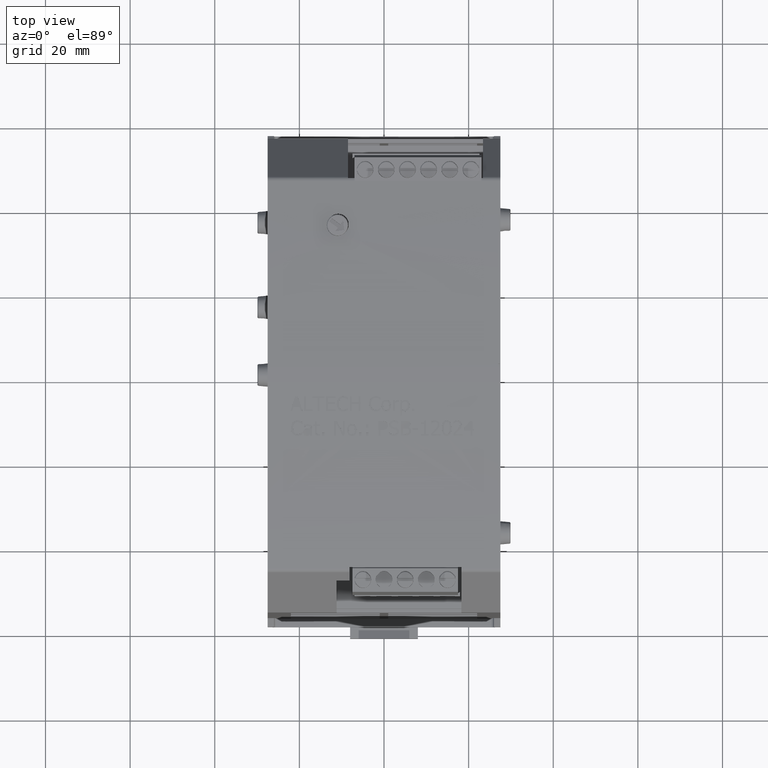
[diagram: clean part render]
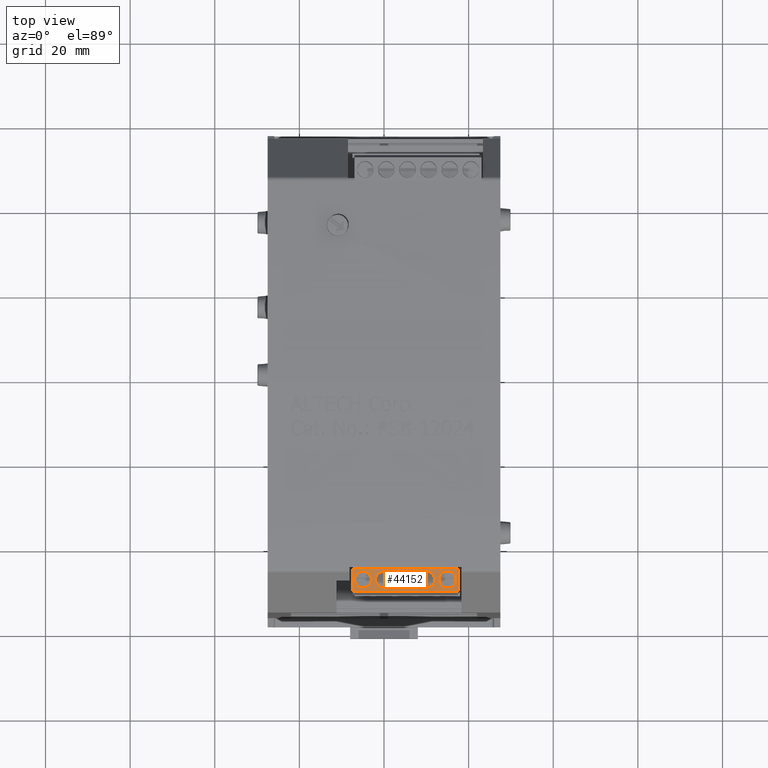
[diagram: same view with one face highlighted and labeled with its STEP entity id]
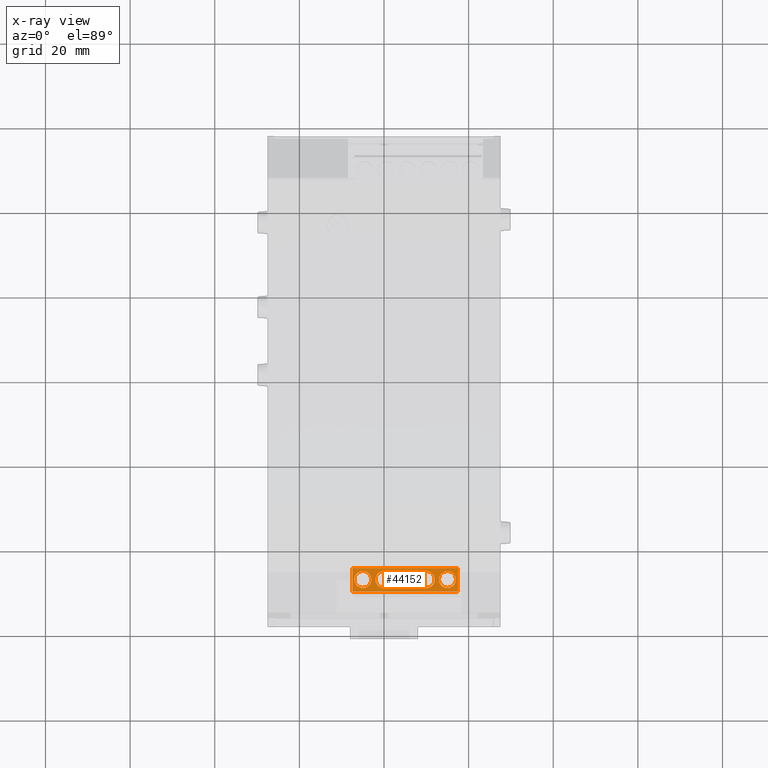
[diagram: x-ray of the same camera — body ghosted, the highlighted face saturated]
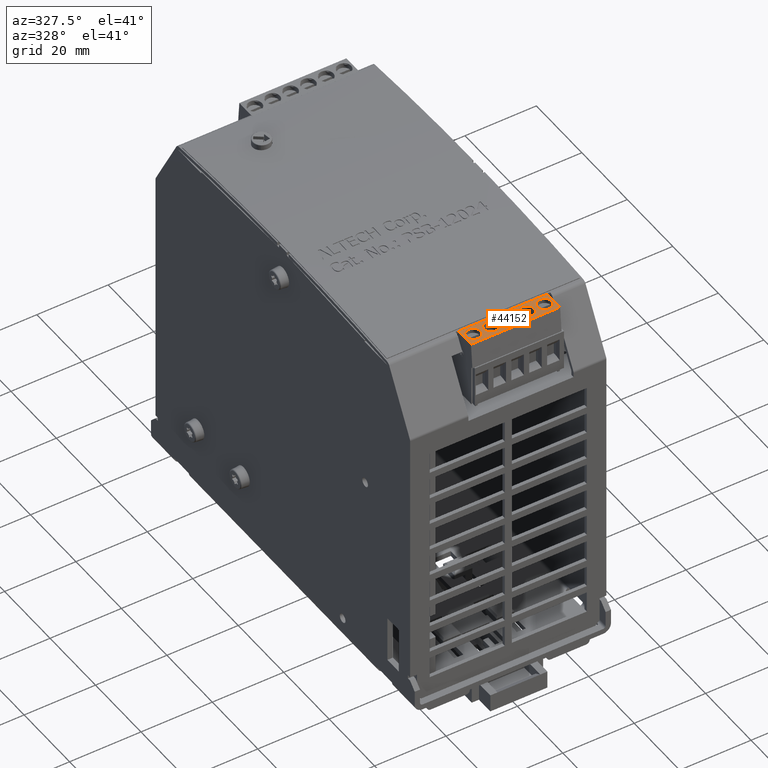
[diagram: same view with one face highlighted and labeled with its STEP entity id]
A machine part, top view. The second image highlights one B-rep face of the part: STEP entity #44152.
The next image is the same camera in x-ray: the body ghosted, the highlighted face saturated — about 0% of this face is hidden behind the body in this view.
A second angle (auxiliary view) of the same face is appended — the face is thin or edge-on in the first view.
In plain terms, the highlighted planar face has unit normal (0, 0, 1).
Its self-contained STEP definition (entity closure, byte-faithful):
#43846=CARTESIAN_POINT('',(-0.295586614173163,-2.022615373581339,3.980732283464569));
#43847=VERTEX_POINT('',#43846);
#43854=CARTESIAN_POINT('',(-0.295586614173163,-1.802142932636457,3.980732283464569));
#43855=VERTEX_POINT('',#43854);
#43856=CARTESIAN_POINT('',(-0.295586614173163,-1.802142932636457,3.980732283464569));
#43857=DIRECTION('',(0.0,-1.0,0.0));
#43858=VECTOR('',#43857,0.220472440944882);
#43859=LINE('',#43856,#43858);
#43860=EDGE_CURVE('',#43855,#43847,#43859,.T.);
#44056=CARTESIAN_POINT('',(0.688665354330774,-2.022615373581339,3.980732283464569));
#44057=VERTEX_POINT('',#44056);
#44064=CARTESIAN_POINT('',(0.688665354330774,-2.022615373581339,3.980732283464569));
#44065=DIRECTION('',(-1.0,0.0,0.0));
#44066=VECTOR('',#44065,0.984251968503937);
#44067=LINE('',#44064,#44066);
#44068=EDGE_CURVE('',#44057,#43847,#44067,.T.);
#44074=CARTESIAN_POINT('',(-0.295586614173163,-2.022615373581339,3.980732283464569));
#44075=DIRECTION('',(0.0,0.0,1.0));
#44076=DIRECTION('',(0.0,-1.0,0.0));
#44077=AXIS2_PLACEMENT_3D('',#44074,#44075,#44076);
#44078=PLANE('',#44077);
#44079=ORIENTED_EDGE('',*,*,#43860,.T.);
#44080=ORIENTED_EDGE('',*,*,#44068,.F.);
#44081=CARTESIAN_POINT('',(0.688665354330774,-1.802142932636457,3.980732283464569));
#44082=VERTEX_POINT('',#44081);
#44083=CARTESIAN_POINT('',(0.688665354330774,-1.802142932636457,3.980732283464569));
#44084=DIRECTION('',(0.0,-1.0,0.0));
#44085=VECTOR('',#44084,0.220472440944882);
#44086=LINE('',#44083,#44085);
#44087=EDGE_CURVE('',#44082,#44057,#44086,.T.);
#44088=ORIENTED_EDGE('',*,*,#44087,.F.);
#44089=CARTESIAN_POINT('',(0.688665354330774,-1.802142932636457,3.980732283464569));
#44090=DIRECTION('',(-1.0,0.0,0.0));
#44091=VECTOR('',#44090,0.984251968503937);
#44092=LINE('',#44089,#44091);
#44093=EDGE_CURVE('',#44082,#43855,#44092,.T.);
#44094=ORIENTED_EDGE('',*,*,#44093,.T.);
#44095=EDGE_LOOP('',(#44079,#44080,#44088,#44094));
#44096=FACE_OUTER_BOUND('',#44095,.T.);
#44097=CARTESIAN_POINT('',(-0.19716141732277,-1.829748031496064,3.980732283464569));
#44098=VERTEX_POINT('',#44097);
#44099=CARTESIAN_POINT('',(-0.19716141732277,-1.908488188976379,3.980732283464569));
#44100=DIRECTION('',(0.0,0.0,1.0));
#44101=DIRECTION('',(0.0,1.0,0.0));
#44102=AXIS2_PLACEMENT_3D('',#44099,#44100,#44101);
#44103=CIRCLE('',#44102,0.078740157480315);
#44104=EDGE_CURVE('',#44098,#44098,#44103,.T.);
#44105=ORIENTED_EDGE('',*,*,#44104,.F.);
#44106=EDGE_LOOP('',(#44105));
#44107=FACE_BOUND('',#44106,.T.);
#44108=CARTESIAN_POINT('',(-0.000311023621982,-1.829748031496064,3.980732283464569));
#44109=VERTEX_POINT('',#44108);
#44110=CARTESIAN_POINT('',(-0.000311023621982,-1.908488188976379,3.980732283464569));
#44111=DIRECTION('',(0.0,0.0,1.0));
#44112=DIRECTION('',(0.0,1.0,0.0));
#44113=AXIS2_PLACEMENT_3D('',#44110,#44111,#44112);
#44114=CIRCLE('',#44113,0.078740157480315);
#44115=EDGE_CURVE('',#44109,#44109,#44114,.T.);
#44116=ORIENTED_EDGE('',*,*,#44115,.F.);
#44117=EDGE_LOOP('',(#44116));
#44118=FACE_BOUND('',#44117,.T.);
#44119=CARTESIAN_POINT('',(0.196539370078805,-1.829748031496064,3.980732283464569));
#44120=VERTEX_POINT('',#44119);
#44121=CARTESIAN_POINT('',(0.196539370078805,-1.908488188976379,3.980732283464569));
#44122=DIRECTION('',(0.0,0.0,1.0));
#44123=DIRECTION('',(0.0,1.0,0.0));
#44124=AXIS2_PLACEMENT_3D('',#44121,#44122,#44123);
#44125=CIRCLE('',#44124,0.078740157480315);
#44126=EDGE_CURVE('',#44120,#44120,#44125,.T.);
#44127=ORIENTED_EDGE('',*,*,#44126,.F.);
#44128=EDGE_LOOP('',(#44127));
#44129=FACE_BOUND('',#44128,.T.);
#44130=CARTESIAN_POINT('',(0.393389763779593,-1.829748031496064,3.980732283464569));
#44131=VERTEX_POINT('',#44130);
#44132=CARTESIAN_POINT('',(0.393389763779593,-1.908488188976379,3.980732283464569));
#44133=DIRECTION('',(0.0,0.0,1.0));
#44134=DIRECTION('',(0.0,1.0,0.0));
#44135=AXIS2_PLACEMENT_3D('',#44132,#44133,#44134);
#44136=CIRCLE('',#44135,0.078740157480315);
#44137=EDGE_CURVE('',#44131,#44131,#44136,.T.);
#44138=ORIENTED_EDGE('',*,*,#44137,.F.);
#44139=EDGE_LOOP('',(#44138));
#44140=FACE_BOUND('',#44139,.T.);
#44141=CARTESIAN_POINT('',(0.59024015748038,-1.829748031496064,3.980732283464569));
#44142=VERTEX_POINT('',#44141);
#44143=CARTESIAN_POINT('',(0.59024015748038,-1.908488188976379,3.980732283464569));
#44144=DIRECTION('',(0.0,0.0,1.0));
#44145=DIRECTION('',(0.0,1.0,0.0));
#44146=AXIS2_PLACEMENT_3D('',#44143,#44144,#44145);
#44147=CIRCLE('',#44146,0.078740157480315);
#44148=EDGE_CURVE('',#44142,#44142,#44147,.T.);
#44149=ORIENTED_EDGE('',*,*,#44148,.F.);
#44150=EDGE_LOOP('',(#44149));
#44151=FACE_BOUND('',#44150,.T.);
#44152=ADVANCED_FACE('',(#44096,#44107,#44118,#44129,#44140,#44151),#44078,.T.);